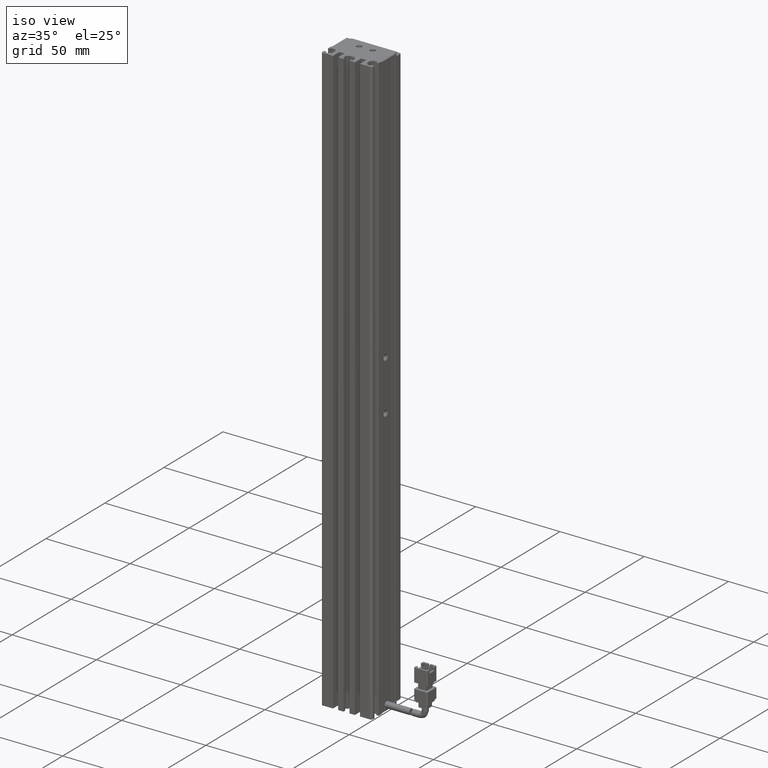
[diagram: clean part render]
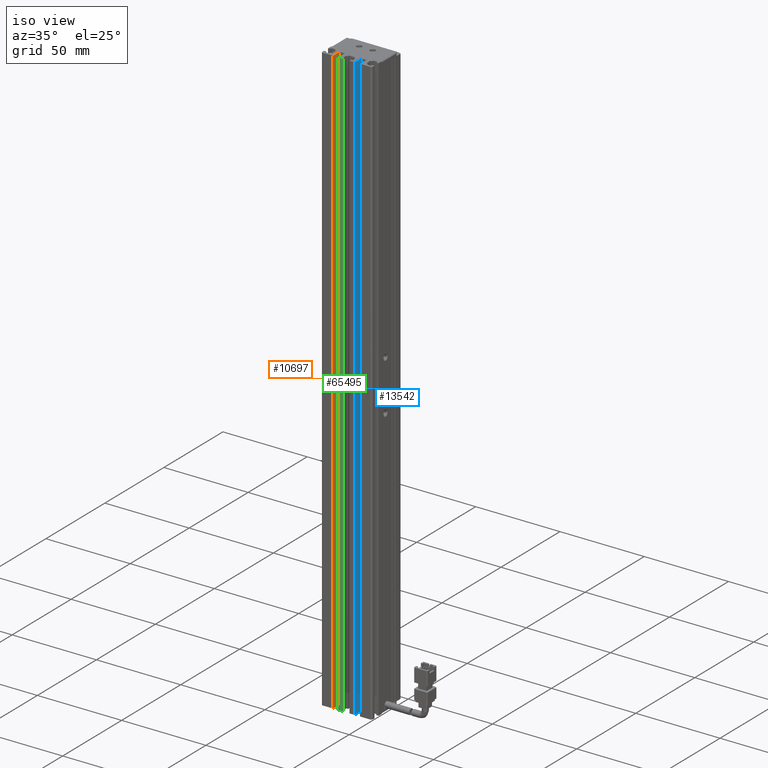
[diagram: same view with three faces highlighted in distinct colors, each labeled with its STEP entity id]
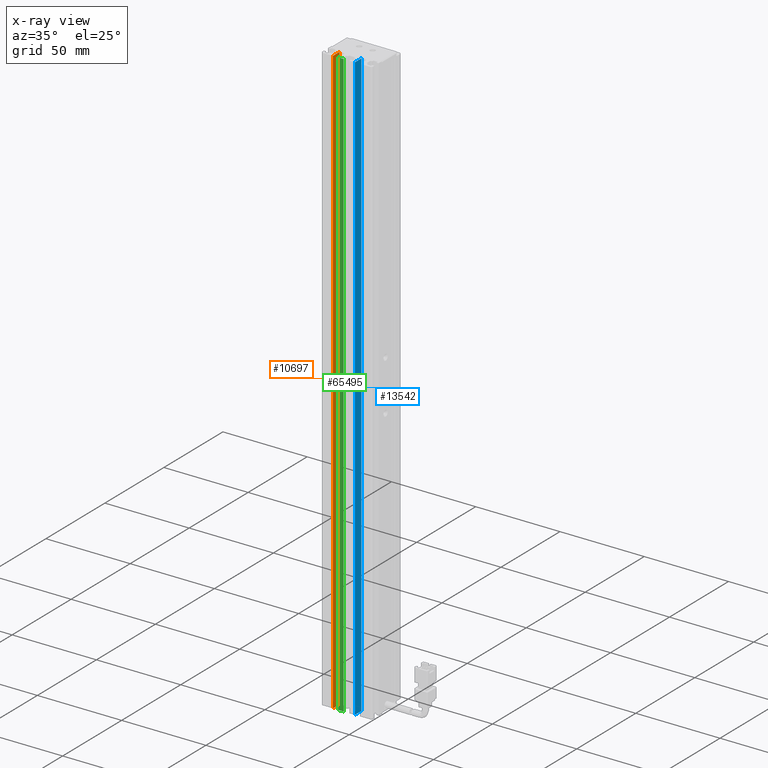
[diagram: x-ray of the same camera — body ghosted, the three highlighted faces saturated]
A machine part, iso view with three faces highlighted in distinct colors.
The next image is the same camera in x-ray (body ghosted, the three faces saturated) — at least one of them is partly hidden behind the body in this view.
Their STEP definitions:

[orange] entity #10697 — the highlighted planar face has unit normal (-1, 0, 0).
#247 = VERTEX_POINT ( 'NONE', #38144 ) ;
#9660 = VERTEX_POINT ( 'NONE', #33663 ) ;
#10200 = LINE ( 'NONE', #20979, #11811 ) ;
#10556 = DIRECTION ( 'NONE',  ( 0.0000000000000000000, 1.000000000000000000, -0.0000000000000000000 ) ) ;
#10697 = ADVANCED_FACE ( 'NONE', ( #11904 ), #29583, .F. ) ;
#11033 = LINE ( 'NONE', #41764, #51016 ) ;
#11811 = VECTOR ( 'NONE', #26254, 1000.000000000000000 ) ;
#11904 = FACE_OUTER_BOUND ( 'NONE', #63915, .T. ) ;
#16577 = EDGE_CURVE ( 'NONE', #9660, #247, #46433, .T. ) ;
#17585 = AXIS2_PLACEMENT_3D ( 'NONE', #50542, #19277, #55817 ) ;
#18683 = VECTOR ( 'NONE', #57150, 1000.000000000000000 ) ;
#19277 = DIRECTION ( 'NONE',  ( -1.000000000000000000, 0.0000000000000000000, 0.0000000000000000000 ) ) ;
#20979 = CARTESIAN_POINT ( 'NONE',  ( 32.92537974683543200, 16.19594479660386500, 60.00000000000001400 ) ) ;
#23909 = DIRECTION ( 'NONE',  ( 0.0000000000000000000, 1.000000000000000000, -0.0000000000000000000 ) ) ;
#24970 = CARTESIAN_POINT ( 'NONE',  ( 32.92537974683543200, 16.19594479660386500, -290.0000000000000600 ) ) ;
#25860 = ORIENTED_EDGE ( 'NONE', *, *, #57949, .F. ) ;
#26188 = ORIENTED_EDGE ( 'NONE', *, *, #32695, .T. ) ;
#26254 = DIRECTION ( 'NONE',  ( 0.0000000000000000000, -0.0000000000000000000, 1.000000000000000000 ) ) ;
#29583 = PLANE ( 'NONE',  #17585 ) ;
#32695 = EDGE_CURVE ( 'NONE', #44481, #56552, #10200, .T. ) ;
#33663 = CARTESIAN_POINT ( 'NONE',  ( 32.92537974683543200, 10.69594479660386800, -290.0000000000000600 ) ) ;
#35990 = ORIENTED_EDGE ( 'NONE', *, *, #16577, .F. ) ;
#38144 = CARTESIAN_POINT ( 'NONE',  ( 32.92537974683543200, 10.69594479660386800, 60.00000000000001400 ) ) ;
#41764 = CARTESIAN_POINT ( 'NONE',  ( 32.92537974683543200, 7.083797468354437600, 60.00000000000001400 ) ) ;
#44481 = VERTEX_POINT ( 'NONE', #24970 ) ;
#44627 = CARTESIAN_POINT ( 'NONE',  ( 32.92537974683543200, 7.083797468354437600, -290.0000000000000600 ) ) ;
#44931 = VECTOR ( 'NONE', #23909, 1000.000000000000000 ) ;
#45353 = CARTESIAN_POINT ( 'NONE',  ( 32.92537974683543200, 16.19594479660386500, 60.00000000000001400 ) ) ;
#46433 = LINE ( 'NONE', #67189, #18683 ) ;
#50542 = CARTESIAN_POINT ( 'NONE',  ( 32.92537974683543200, 7.083797468354437600, 60.00000000000001400 ) ) ;
#51016 = VECTOR ( 'NONE', #10556, 1000.000000000000000 ) ;
#55817 = DIRECTION ( 'NONE',  ( 0.0000000000000000000, 0.0000000000000000000, 1.000000000000000000 ) ) ;
#56133 = EDGE_CURVE ( 'NONE', #9660, #44481, #58856, .T. ) ;
#56552 = VERTEX_POINT ( 'NONE', #45353 ) ;
#57150 = DIRECTION ( 'NONE',  ( 0.0000000000000000000, 0.0000000000000000000, 1.000000000000000000 ) ) ;
#57949 = EDGE_CURVE ( 'NONE', #247, #56552, #11033, .T. ) ;
#58856 = LINE ( 'NONE', #44627, #44931 ) ;
#58875 = ORIENTED_EDGE ( 'NONE', *, *, #56133, .T. ) ;
#63915 = EDGE_LOOP ( 'NONE', ( #26188, #25860, #35990, #58875 ) ) ;
#67189 = CARTESIAN_POINT ( 'NONE',  ( 32.92537974683543200, 10.69594479660386800, 60.00000000000001400 ) ) ;

[blue] entity #13542 — the highlighted planar face has unit normal (-1, -0, 0).
#6690 = EDGE_CURVE ( 'NONE', #37679, #11236, #8132, .T. ) ;
#8132 = LINE ( 'NONE', #18580, #35844 ) ;
#9336 = ORIENTED_EDGE ( 'NONE', *, *, #6690, .F. ) ;
#9677 = DIRECTION ( 'NONE',  ( -1.000000000000000000, -3.154042683594196600E-016, 0.0000000000000000000 ) ) ;
#11236 = VERTEX_POINT ( 'NONE', #30485 ) ;
#11359 = LINE ( 'NONE', #46536, #25227 ) ;
#13542 = ADVANCED_FACE ( 'NONE', ( #40560 ), #45890, .F. ) ;
#13989 = CARTESIAN_POINT ( 'NONE',  ( 45.92537974683541800, 10.69594479660386800, -290.0000000000000600 ) ) ;
#15835 = ORIENTED_EDGE ( 'NONE', *, *, #52502, .T. ) ;
#15863 = EDGE_CURVE ( 'NONE', #11236, #36630, #11359, .T. ) ;
#16282 = CARTESIAN_POINT ( 'NONE',  ( 45.92537974683541800, 7.083797468354437600, -290.0000000000000600 ) ) ;
#17777 = CARTESIAN_POINT ( 'NONE',  ( 45.92537974683541800, 10.69594479660386800, 60.00000000000001400 ) ) ;
#18580 = CARTESIAN_POINT ( 'NONE',  ( 45.92537974683541800, 7.083797468354437600, 60.00000000000001400 ) ) ;
#24700 = EDGE_CURVE ( 'NONE', #55128, #37679, #28673, .T. ) ;
#25227 = VECTOR ( 'NONE', #51816, 1000.000000000000000 ) ;
#27020 = VECTOR ( 'NONE', #60835, 1000.000000000000000 ) ;
#28673 = LINE ( 'NONE', #34755, #27020 ) ;
#30485 = CARTESIAN_POINT ( 'NONE',  ( 45.92537974683541800, 16.19594479660386800, 60.00000000000001400 ) ) ;
#30832 = LINE ( 'NONE', #16282, #44680 ) ;
#34755 = CARTESIAN_POINT ( 'NONE',  ( 45.92537974683541800, 10.69594479660386800, 60.00000000000001400 ) ) ;
#35844 = VECTOR ( 'NONE', #54927, 1000.000000000000000 ) ;
#36630 = VERTEX_POINT ( 'NONE', #53382 ) ;
#37679 = VERTEX_POINT ( 'NONE', #17777 ) ;
#40560 = FACE_OUTER_BOUND ( 'NONE', #57822, .T. ) ;
#40887 = CARTESIAN_POINT ( 'NONE',  ( 45.92537974683541800, 7.083797468354439400, 60.00000000000001400 ) ) ;
#44680 = VECTOR ( 'NONE', #58276, 1000.000000000000000 ) ;
#45890 = PLANE ( 'NONE',  #54588 ) ;
#46125 = DIRECTION ( 'NONE',  ( 3.154042683594196600E-016, -1.000000000000000000, 0.0000000000000000000 ) ) ;
#46536 = CARTESIAN_POINT ( 'NONE',  ( 45.92537974683541800, 16.19594479660386800, 60.00000000000001400 ) ) ;
#50468 = ORIENTED_EDGE ( 'NONE', *, *, #15863, .F. ) ;
#51816 = DIRECTION ( 'NONE',  ( 0.0000000000000000000, -0.0000000000000000000, -1.000000000000000000 ) ) ;
#52502 = EDGE_CURVE ( 'NONE', #55128, #36630, #30832, .T. ) ;
#53382 = CARTESIAN_POINT ( 'NONE',  ( 45.92537974683541800, 16.19594479660386800, -290.0000000000000600 ) ) ;
#54588 = AXIS2_PLACEMENT_3D ( 'NONE', #40887, #9677, #46125 ) ;
#54927 = DIRECTION ( 'NONE',  ( 0.0000000000000000000, 1.000000000000000000, -0.0000000000000000000 ) ) ;
#55128 = VERTEX_POINT ( 'NONE', #13989 ) ;
#57822 = EDGE_LOOP ( 'NONE', ( #50468, #9336, #60707, #15835 ) ) ;
#58276 = DIRECTION ( 'NONE',  ( 0.0000000000000000000, 1.000000000000000000, -0.0000000000000000000 ) ) ;
#60707 = ORIENTED_EDGE ( 'NONE', *, *, #24700, .F. ) ;
#60835 = DIRECTION ( 'NONE',  ( 0.0000000000000000000, 0.0000000000000000000, 1.000000000000000000 ) ) ;

[green] entity #65495 — the highlighted planar face has unit normal (0, -1, 0).
#3803 = ORIENTED_EDGE ( 'NONE', *, *, #50905, .F. ) ;
#5807 = LINE ( 'NONE', #9592, #33471 ) ;
#6277 = EDGE_CURVE ( 'NONE', #25696, #46556, #5807, .T. ) ;
#6337 = CARTESIAN_POINT ( 'NONE',  ( 35.92537974683543200, 10.69594479660386800, 60.00000000000001400 ) ) ;
#7084 = EDGE_LOOP ( 'NONE', ( #3803, #67206, #63404, #44100 ) ) ;
#9592 = CARTESIAN_POINT ( 'NONE',  ( 40.92537974683542500, 10.69594479660386800, -290.0000000000000600 ) ) ;
#13675 = CARTESIAN_POINT ( 'NONE',  ( 40.92537974683542500, 10.69594479660386800, 60.00000000000001400 ) ) ;
#14610 = DIRECTION ( 'NONE',  ( 1.000000000000000000, 0.0000000000000000000, 0.0000000000000000000 ) ) ;
#17238 = LINE ( 'NONE', #6337, #44974 ) ;
#18883 = DIRECTION ( 'NONE',  ( 0.0000000000000000000, -0.0000000000000000000, -1.000000000000000000 ) ) ;
#19527 = VECTOR ( 'NONE', #43247, 1000.000000000000000 ) ;
#22219 = FACE_OUTER_BOUND ( 'NONE', #7084, .T. ) ;
#23969 = PLANE ( 'NONE',  #44367 ) ;
#25696 = VERTEX_POINT ( 'NONE', #65720 ) ;
#26189 = CARTESIAN_POINT ( 'NONE',  ( 35.92537974683543200, 10.69594479660386800, 60.00000000000001400 ) ) ;
#26520 = LINE ( 'NONE', #57157, #38681 ) ;
#31111 = DIRECTION ( 'NONE',  ( 1.000000000000000000, 0.0000000000000000000, 0.0000000000000000000 ) ) ;
#33471 = VECTOR ( 'NONE', #14610, 1000.000000000000000 ) ;
#37158 = VERTEX_POINT ( 'NONE', #43278 ) ;
#37941 = CARTESIAN_POINT ( 'NONE',  ( 39.17537974683542500, 10.69594479660386800, 60.00000000000001400 ) ) ;
#38681 = VECTOR ( 'NONE', #31111, 1000.000000000000000 ) ;
#42798 = DIRECTION ( 'NONE',  ( 0.0000000000000000000, -0.0000000000000000000, -1.000000000000000000 ) ) ;
#43247 = DIRECTION ( 'NONE',  ( -0.0000000000000000000, 0.0000000000000000000, 1.000000000000000000 ) ) ;
#43278 = CARTESIAN_POINT ( 'NONE',  ( 39.17537974683542500, 10.69594479660386800, 60.00000000000001400 ) ) ;
#44100 = ORIENTED_EDGE ( 'NONE', *, *, #63447, .T. ) ;
#44367 = AXIS2_PLACEMENT_3D ( 'NONE', #13675, #50180, #18883 ) ;
#44974 = VECTOR ( 'NONE', #42798, 1000.000000000000000 ) ;
#46556 = VERTEX_POINT ( 'NONE', #67598 ) ;
#50180 = DIRECTION ( 'NONE',  ( 0.0000000000000000000, -1.000000000000000000, 0.0000000000000000000 ) ) ;
#50905 = EDGE_CURVE ( 'NONE', #53484, #37158, #26520, .T. ) ;
#53484 = VERTEX_POINT ( 'NONE', #26189 ) ;
#57157 = CARTESIAN_POINT ( 'NONE',  ( 40.92537974683542500, 10.69594479660386800, 60.00000000000001400 ) ) ;
#60111 = EDGE_CURVE ( 'NONE', #53484, #25696, #17238, .T. ) ;
#61209 = LINE ( 'NONE', #37941, #19527 ) ;
#63404 = ORIENTED_EDGE ( 'NONE', *, *, #6277, .T. ) ;
#63447 = EDGE_CURVE ( 'NONE', #46556, #37158, #61209, .T. ) ;
#65495 = ADVANCED_FACE ( 'NONE', ( #22219 ), #23969, .T. ) ;
#65720 = CARTESIAN_POINT ( 'NONE',  ( 35.92537974683543200, 10.69594479660386800, -290.0000000000000600 ) ) ;
#67206 = ORIENTED_EDGE ( 'NONE', *, *, #60111, .T. ) ;
#67598 = CARTESIAN_POINT ( 'NONE',  ( 39.17537974683542500, 10.69594479660386800, -290.0000000000000600 ) ) ;